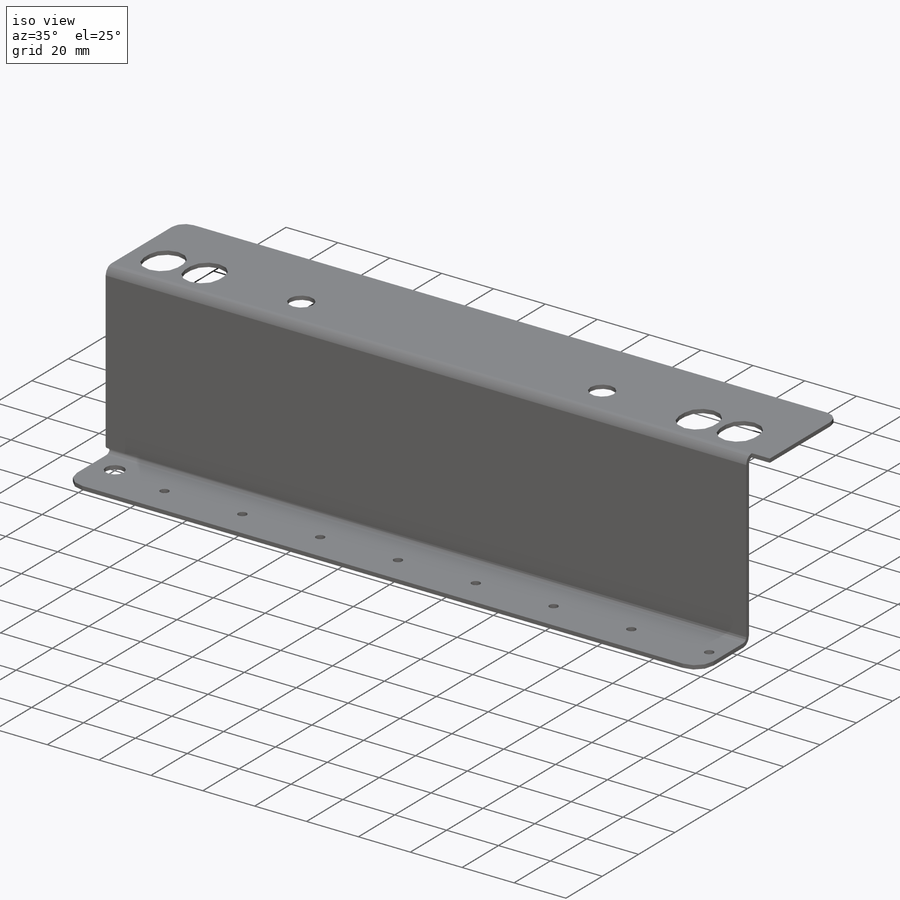
[diagram: iso view]
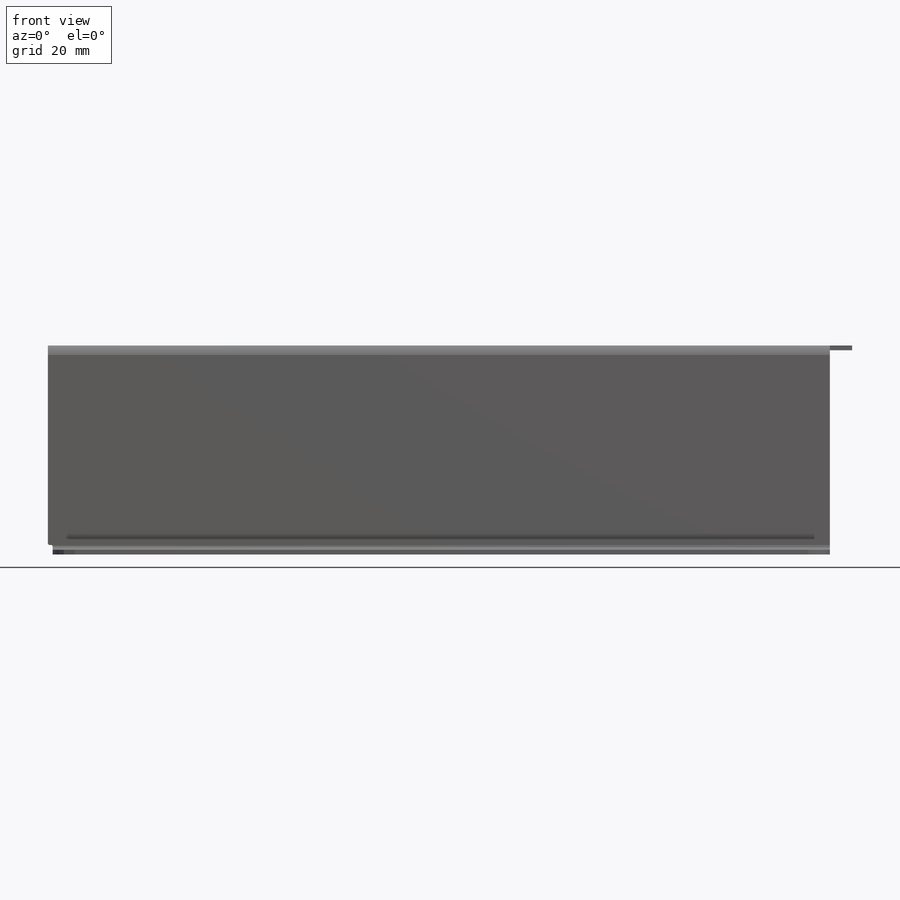
[diagram: front view]
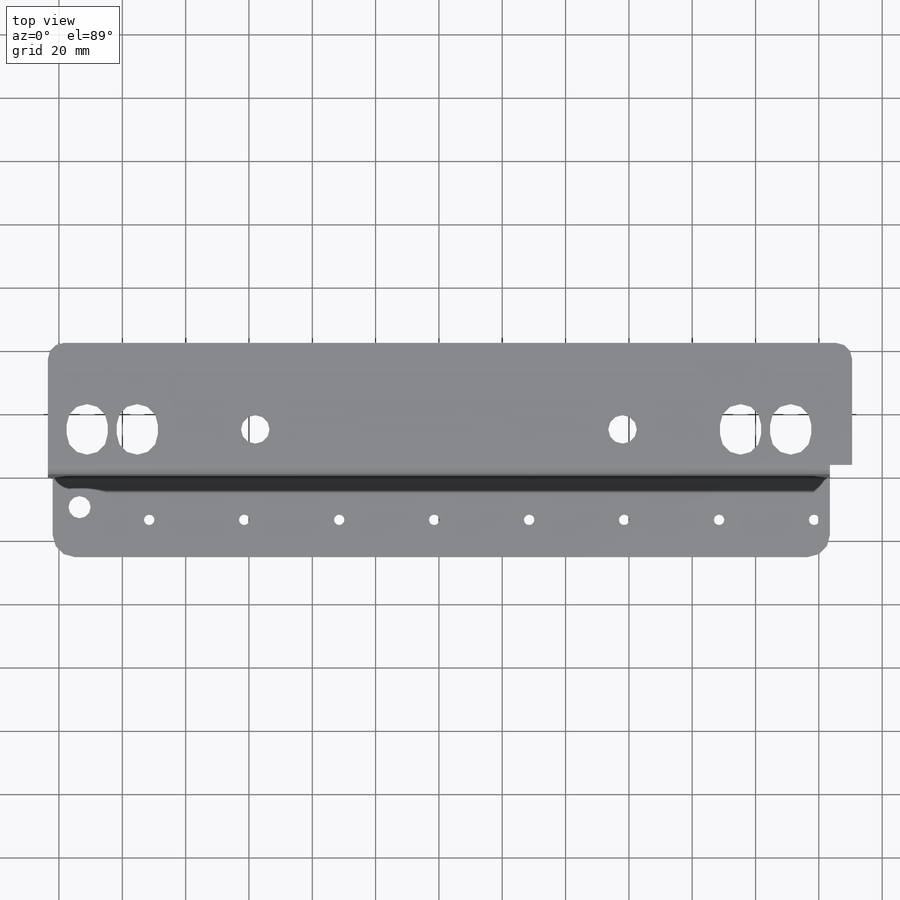
[diagram: top view]
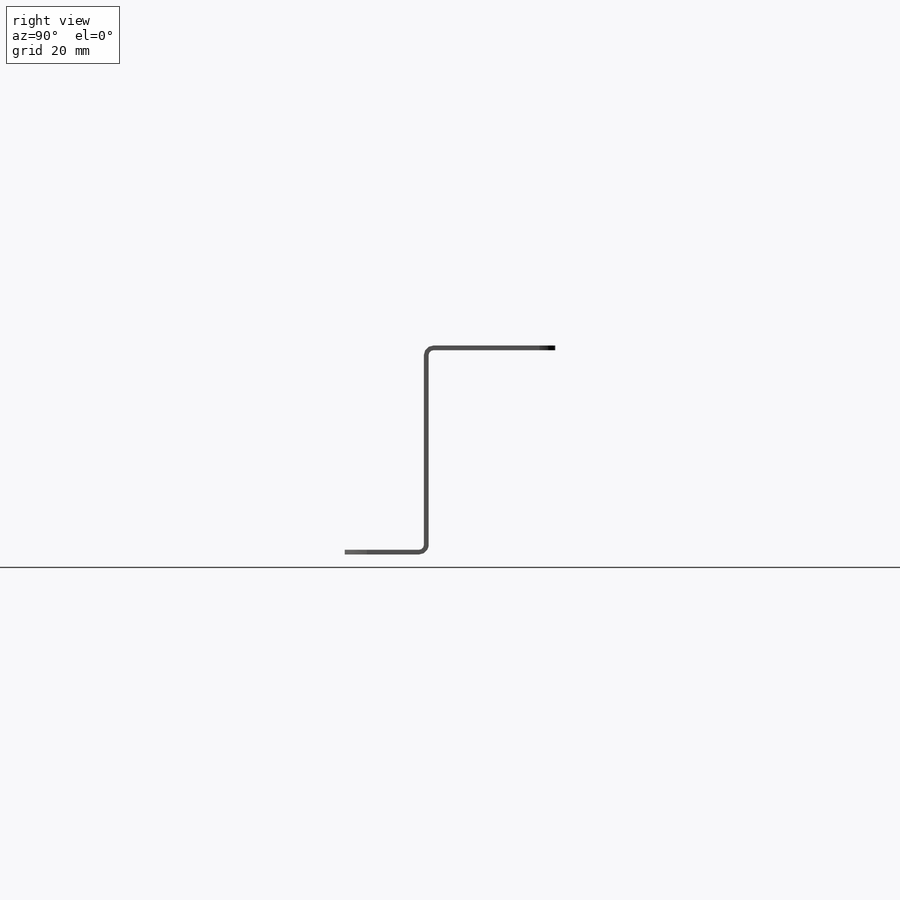
[diagram: right view]
SOLIDWORKS PART (.sldprt)
format: sldprt  version: not decoded by parser v0  size: 584,704 bytes
history: native  units: mm
features: sketch x28, sheet_metal_op x19, plane x3, fillet x3, mirror x3, cut_extrude x2, hole x2, material x1, thread x1, pattern_linear x1, extrude x1, delete_body x1 + 21 further entries (+10 scaffold rows collapsed; 9 parser-record rows omitted)
feature tree (105):
  scaffold x10  (default folders/planes/origin — collapsed)
  material  "1.4301 (X5CrNi18-10)"
  "Zuschnittslistenelement2"
  plane  "XY"
  plane  "XZ"
  plane  "YZ"
  "Y"
  "Z"
  sketch  "Skizze1"  dims[c1.D1=25.0mm c1.D2=64.5mm c1.D3=41.5mm c2.D1=1.5mm c2.D2=0.5 c2.D3=0.0mm c2.D6=500.0mm]
  sheet_metal_op  "Basis-Blech1"
  sheet_metal_op  "Basisbiegung2"
  sketch  "Skizze6"  dims[D3=6.5mm D4=6.5mm D8=9.0mm D1=95.27mm D2=111.1mm D5=3.0mm D6=3.0mm D7=58.0mm D9=27.3mm]
  cut_extrude  "Schnitt-Linear austragen1"  [1 undecoded]
  hole  "Ø7.0 (7) Durchmesser Bohrung1"  Diameter=7mm Depth=1.5mm
  sketch  "Skizze8"  dims[D1=10.0mm D2=9.25mm]
  sketch  "Skizze7"  dims[hole-wizard template sketch: 59 standard entries collapsed; hole parameters kept: c18.Bohrerdurchmesser=7.0mm c18.Bohrungstiefe=1.5mm]
  hole  "M4 Gewindebohrung1"  Diameter=3.3mm Depth=1.5mm
  sketch  "Skizze10"  dims[D1=32.0mm D2=13.25mm]
  sketch  "Skizze9"  dims[hole-wizard template sketch: 59 standard entries collapsed; hole parameters kept: c18.Bohrerdurchmesser=3.3mm c18.Bohrungstiefe=1.5mm]
  thread  "Bohrungsgewinde1"  Diameter=4mm  [1 undecoded]
  pattern_linear  "Lineares Muster1"  Count1=8 Count2=1 Spacing1=30mm Spacing2=10mm
  sketch  "Skizze11"  dims[D1=0.0mm]
  extrude  "Aufsatz-Linear austragen1"  Depth=7mm
  sketch  "Skizze12"
  cut_extrude  "Schnitt-Linear austragen2"  Depth=1.5mm
  fillet  "Verrundung1"  Radius=0.5mm
  fillet  "Verrundung2"  Radius=5mm
  fillet  "Verrundung3"  Radius=7mm
  mirror  "Spiegeln1"
  mirror  "Spiegeln2"
  mirror  "AbgeleiteteBiegung2"
  delete_body  "Körper-Löschen1"
  sketch  "Biegung-Linien1"
  sketch  "Rahmen1"
  sheet_metal_op  "Blech1"
  "Abwicklung1"
  sketch  "Biegung-Linien2"
  sketch  "Rahmen2"
  parser-record x9  (decoder bookkeeping rows leaked as tree rows — omitted from the tree; the rows remain in map.json)
  "Abwickeln-<Basisbiegung2>1"
  sheet_metal_op  "Blech2"
  sheet_metal_op  "Abwicklung1"
  sketch  "Biegung-Linien2"
  sketch  "Rahmen2"
  "Abwickeln-<Basisbiegung1>1"
  "Abwickeln-<Basisbiegung2>1"
  sheet_metal_op  "Blech3"
  sheet_metal_op  "Abwicklung1"
  sketch  "Biegung-Linien2"
  sketch  "Rahmen2"
  "Abwickeln-<Basisbiegung1>1"
  "Abwickeln-<Basisbiegung2>1"
  sheet_metal_op  "Blech4"
  sheet_metal_op  "Abwicklung1"
  sketch  "Biegung-Linien2"
  sketch  "Rahmen2"
  "Abwickeln-<Basisbiegung1>1"
  "Abwickeln-<Basisbiegung2>1"
  sheet_metal_op  "Blech5"
  sheet_metal_op  "Abwicklung1"
  sketch  "Biegung-Linien2"
  sketch  "Rahmen2"
  "Abwickeln-<Basisbiegung1>1"
  "Abwickeln-<Basisbiegung2>1"
  sheet_metal_op  "Blech6"
  sheet_metal_op  "Abwicklung1"
  sketch  "Biegung-Linien2"
  sketch  "Rahmen2"
  "Abwickeln-<Basisbiegung1>1"
  "Abwickeln-<Basisbiegung2>1"
  sheet_metal_op  "Blech7"
  sheet_metal_op  "Abwicklung1"
  sketch  "Biegung-Linien2"
  sketch  "Rahmen2"
  "Abwickeln-<Basisbiegung1>1"
  "Abwickeln-<Basisbiegung2>1"
  sheet_metal_op  "Blech8"
  sheet_metal_op  "Abwicklung1"
  sketch  "Biegung-Linien2"
  sketch  "Rahmen2"
  "Abwickeln-<Basisbiegung1>1"
  "Abwickeln-<Basisbiegung2>1"
  sheet_metal_op  "Blech9"
  sheet_metal_op  "Abwicklung9"
  sketch  "Biegung-Linien3"
  sketch  "Rahmen3"
  "Abwickeln-<AbgeleiteteBiegung1>1"
  "Abwickeln-<AbgeleiteteBiegung2>1"
decode coverage: 16 of 61 modeling features carry decoded parameters; 21 rows unclassified (native names shown)
note: ~ marks probable driven/reference dimensions
note: 2 parameter values undecoded
note: suppression state not decoded; provenance and decode notes live in map.json
